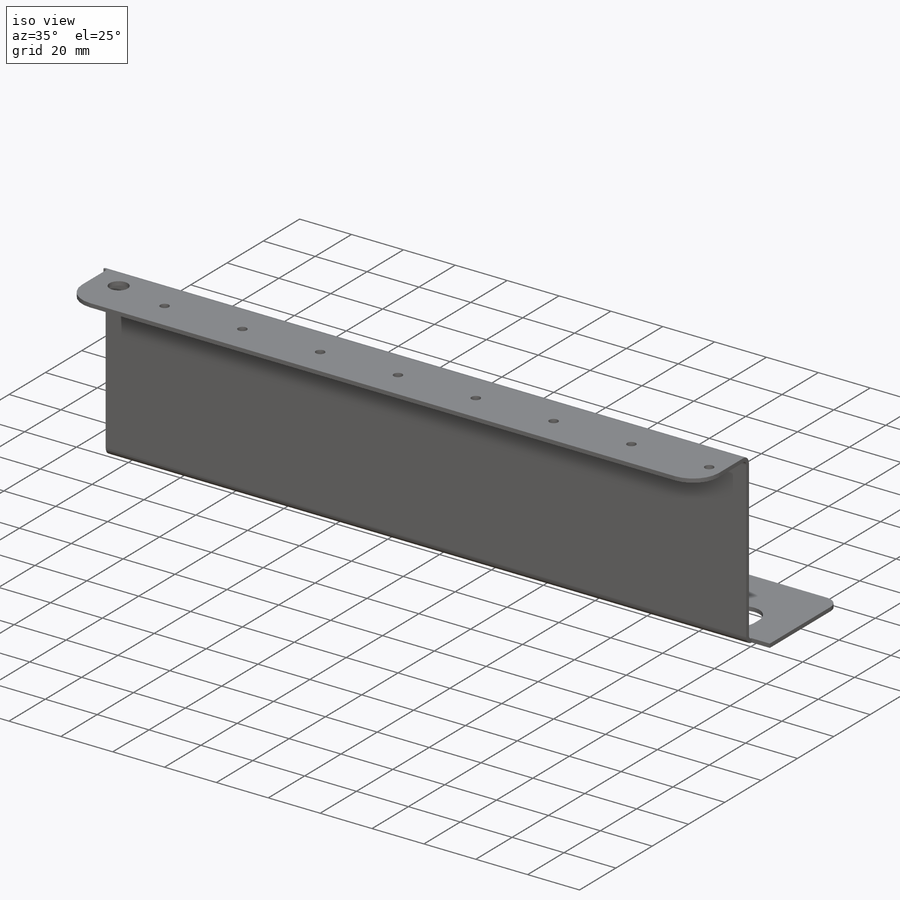
[diagram: iso view]
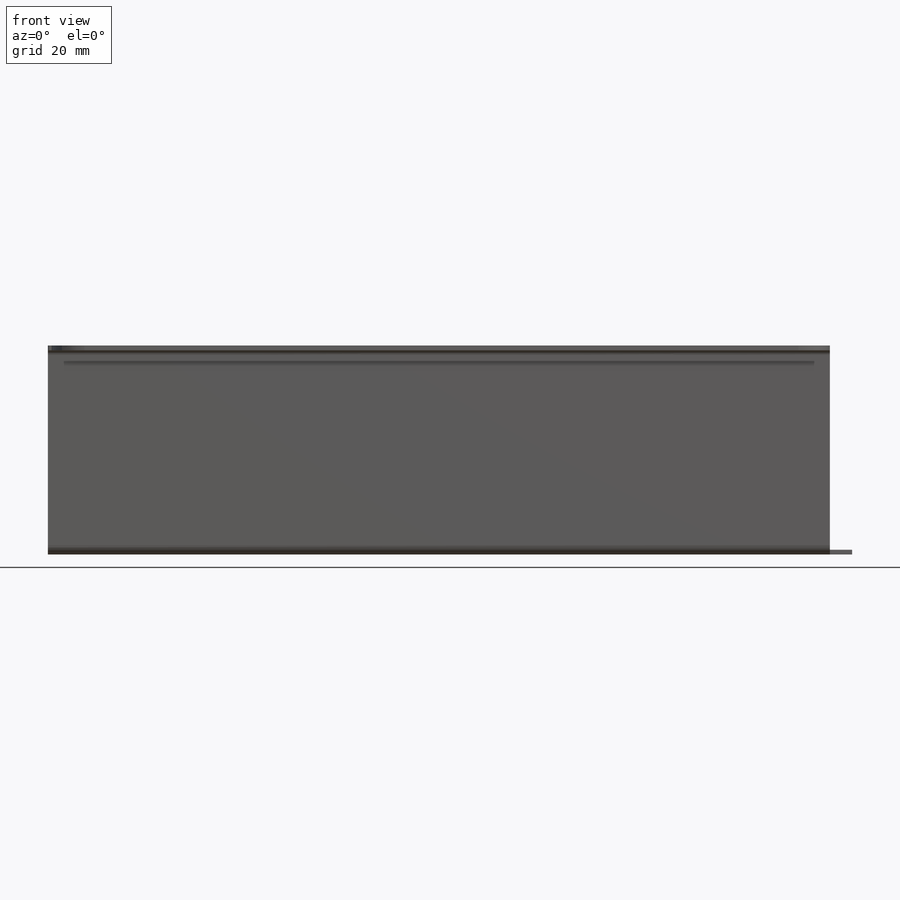
[diagram: front view]
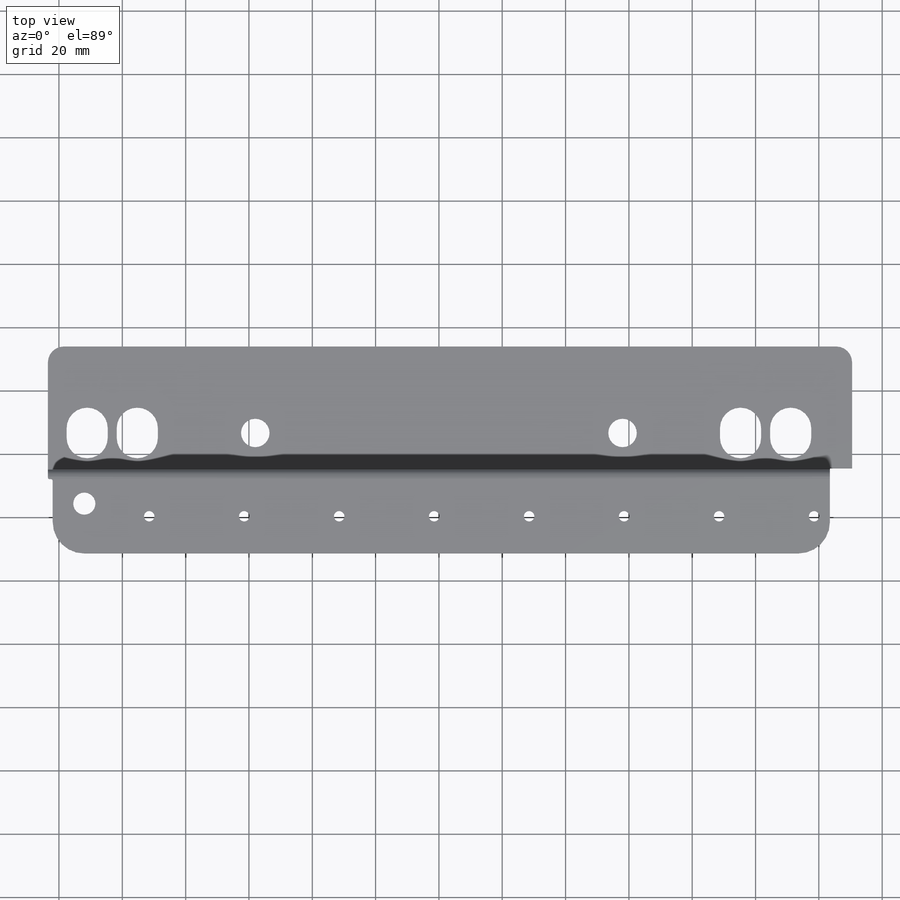
[diagram: top view]
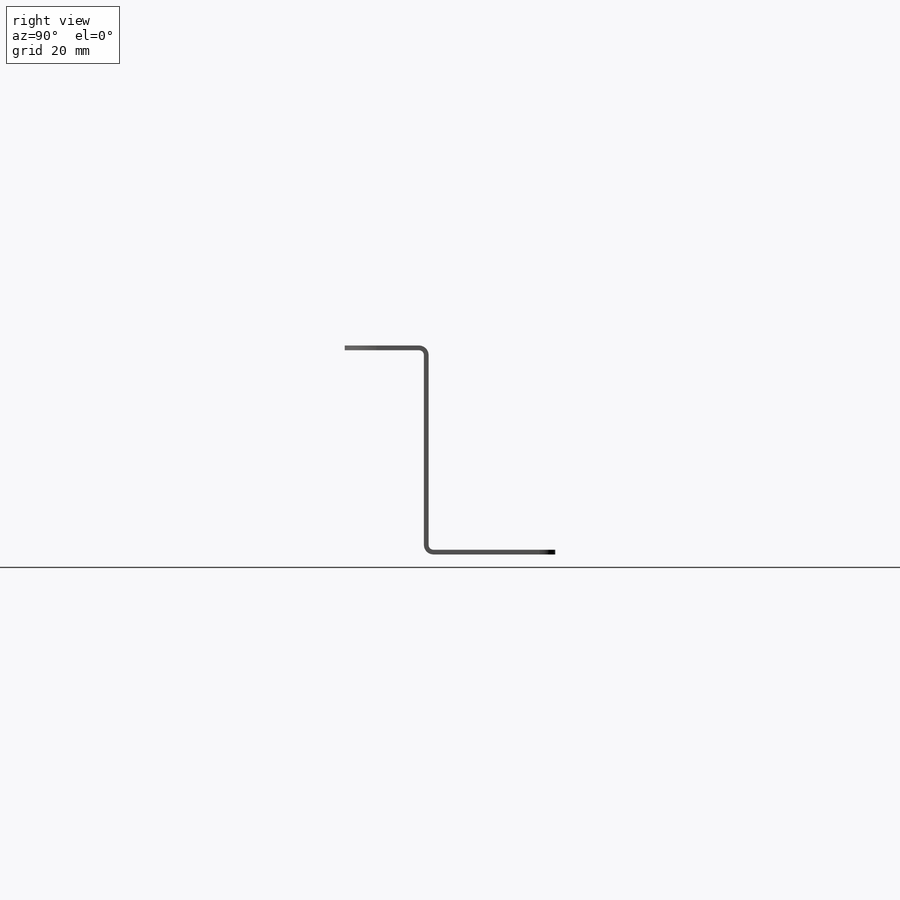
[diagram: right view]
SOLIDWORKS PART (.sldprt)
format: sldprt  version: not decoded by parser v0  size: 1,857,536 bytes
history: native  units: mm
features: sketch x59, sheet_metal_op x23, fillet x6, cut_extrude x4, hole x4, plane x3, extrude x2, thread x2, pattern_linear x2, mirror x2, material x1 + 19 further entries (+10 scaffold rows collapsed; 19 parser-record rows omitted)
feature tree (156):
  scaffold x10  (default folders/planes/origin — collapsed)
  material  "1.4301 (X5Crni18-10)"
  plane  "Ebene vorne"
  plane  "Ebene oben"
  plane  "Ebene rechts"
  sketch  "Skizze1"  dims[c1.D1=247.0mm c1.D2=25.0mm c2.D1=1.5mm c2.D2=0.5 c2.D3=0.0mm c2.D6=500.0mm]
  sheet_metal_op  "Basis-Blech1"
  sketch  "Skizze8"  dims[c1.D1=1.5mm c1.D4=90.0deg c1.D5=1.0 c1.D8=0.75mm c1.D9=0.75mm c2.D1=1.5mm c2.D2=500.0mm c2.D3=0.0mm c2.D6=10.0mm c2.D7=63.0mm c2.Kante-Lasche2=0.0]
  sketch  "Skizze11"
  sheet_metal_op  "Kantenbiegung2"
  sketch  "Skizze13"
  extrude  "Aufsatz-Linear austragen2"  Depth=7mm Kante-Lasche3=0
  sketch  "Skizze16"
  sheet_metal_op  "Kantenbiegung3"  Kante-Lasche4=0
  sketch  "Skizze19"
  sheet_metal_op  "Kantenbiegung4"
  sketch  "Skizze21"
  extrude  "Aufsatz-Linear austragen4"  Depth=7mm
  sketch  "Skizze22"
  cut_extrude  "Schnitt-Linear austragen1"  Depth=1.5mm
  fillet  "Verrundung6"  Radius=10mm
  fillet  "Verrundung7"  Radius=0.5mm
  fillet  "Verrundung8"  Radius=5mm
  sketch  "Skizze23"
  cut_extrude  "Schnitt-Linear austragen2"  Depth=1.5mm
  fillet  "Verrundung9"  Radius=0.5mm
  fillet  "Verrundung10"  Radius=10mm
  fillet  "Verrundung11"  Radius=5mm
  hole  "M4 Gewindebohrung1"  Diameter=3.3mm Depth=11.5mm
  sketch  "Skizze25"  dims[D1=32.0mm D2=13.25mm]
  sketch  "Skizze24"  dims[hole-wizard template sketch: 46 standard entries collapsed; hole parameters kept: c15.Bohrerdurchmesser=3.3mm c15.Bohrungstiefe=11.5mm c15.D3=~14.816244mm c15.Spitzenwinkel=118.0deg]
  thread  "Bohrungsgewinde1"  Diameter=1.5mm  [1 undecoded]
  pattern_linear  "Lineares Muster1"  Count1=8 Count2=1 Spacing1=30mm Spacing2=10mm
  hole  "M4 Gewindebohrung2"  Diameter=3.3mm Depth=11.5mm
  sketch  "Skizze29"  dims[D1=13.25mm D2=32.0mm]
  sketch  "Skizze28"  dims[hole-wizard template sketch: 46 standard entries collapsed; hole parameters kept: c15.Bohrerdurchmesser=3.3mm c15.Bohrungstiefe=11.5mm c15.D3=~14.816244mm c15.Spitzenwinkel=118.0deg]
  thread  "Bohrungsgewinde2"  Diameter=1.5mm  [1 undecoded]
  pattern_linear  "Lineares Muster2"  Count1=8 Count2=1 Spacing1=30mm Spacing2=10mm
  sketch  "Skizze30"  dims[c1.D3=6.5mm c1.D4=6.5mm c1.D8=9.0mm c1.D1=3.0mm c1.D2=3.0mm c2.D4=~11.141936mm c2.D5=95.27mm c2.D6=111.1mm c2.D7=27.3mm c2.D8=14.2mm c2.D9=58.0mm]
  cut_extrude  "Schnitt-Linear austragen3"  [1 undecoded]
  mirror  "Spiegeln1"
  sketch  "Skizze31"  dims[c1.D3=6.5mm c1.D4=6.5mm c1.D9=9.0mm c1.D1=95.27mm c1.D2=111.1mm c2.D3=~114.547463mm c2.D5=3.0mm c2.D6=3.0mm c2.D7=27.3mm c2.D8=58.0mm]
  cut_extrude  "Schnitt-Linear austragen4"  [1 undecoded]
  mirror  "Spiegeln2"
  hole  "Ø7.0 (7) Durchmesser Bohrung1"  Diameter=7mm Depth=1.5mm
  sketch  "Skizze33"  dims[D1=10.0mm D2=9.25mm]
  sketch  "Skizze32"  dims[hole-wizard template sketch: 59 standard entries collapsed; hole parameters kept: c18.Bohrerdurchmesser=7.0mm c18.Bohrungstiefe=1.5mm]
  hole  "Ø7.0 (7) Durchmesser Bohrung2"  Diameter=7mm Depth=1.5mm
  sketch  "Skizze35"  dims[D1=10.0mm D2=9.25mm]
  sketch  "Skizze34"  dims[hole-wizard template sketch: 59 standard entries collapsed; hole parameters kept: c18.Bohrerdurchmesser=7.0mm c18.Bohrungstiefe=1.5mm]
  sketch  "Biegung-Linien1"
  sketch  "Rahmen1"
  sheet_metal_op  "Blech1"
  "Abwicklung1"
  sketch  "Biegung-Linien2"
  sketch  "Rahmen2"
  parser-record x19  (decoder bookkeeping rows leaked as tree rows — omitted from the tree; the rows remain in map.json)
  sheet_metal_op  "Blech2"
  "Abwicklung1"
  sketch  "Biegung-Linien2"
  sketch  "Rahmen2"
  sheet_metal_op  "Blech3"
  "Abwicklung1"
  sketch  "Biegung-Linien2"
  sketch  "Rahmen2"
  sheet_metal_op  "Blech5"
  "Abwicklung1"
  sketch  "Biegung-Linien2"
  sketch  "Rahmen2"
  sheet_metal_op  "Blech6"
  "Abwicklung1"
  sketch  "Biegung-Linien2"
  sketch  "Rahmen2"
  sheet_metal_op  "Blech7"
  "Abwicklung1"
  sketch  "Biegung-Linien2"
  sketch  "Rahmen2"
  sheet_metal_op  "Blech9"
  "Abwicklung1"
  sketch  "Biegung-Linien2"
  sketch  "Rahmen2"
  sheet_metal_op  "Blech10"
  "Abwicklung1"
  sketch  "Biegung-Linien2"
  sketch  "Rahmen2"
  sheet_metal_op  "Blech11"
  "Abwicklung1"
  sketch  "Biegung-Linien2"
  sketch  "Rahmen2"
  sheet_metal_op  "Blech12"
  "Abwicklung1"
  sketch  "Biegung-Linien2"
  sketch  "Rahmen2"
  sheet_metal_op  "Blech13"
  "Abwicklung1"
  sketch  "Biegung-Linien2"
  sketch  "Rahmen2"
  sheet_metal_op  "Blech14"
  "Abwicklung1"
  sketch  "Biegung-Linien2"
  sketch  "Rahmen2"
  sheet_metal_op  "Blech15"
  "Abwicklung1"
  sketch  "Biegung-Linien2"
  sketch  "Rahmen2"
  sheet_metal_op  "Blech16"
  "Abwicklung1"
  sketch  "Biegung-Linien2"
  sketch  "Rahmen2"
  sheet_metal_op  "Blech17"
  "Abwicklung1"
  sketch  "Biegung-Linien2"
  sketch  "Rahmen2"
  sheet_metal_op  "Blech18"
  "Abwicklung1"
  sketch  "Biegung-Linien2"
  sketch  "Rahmen2"
  sheet_metal_op  "Blech19"
  "Abwicklung1"
  sketch  "Biegung-Linien2"
  sketch  "Rahmen2"
  sheet_metal_op  "Blech20"
  "Abwicklung1"
  sketch  "Biegung-Linien2"
  sketch  "Rahmen2"
  sheet_metal_op  "Blech21"
  "Abwicklung1"
  sketch  "Biegung-Linien2"
  sketch  "Rahmen2"
decode coverage: 31 of 104 modeling features carry decoded parameters; 19 rows unclassified (native names shown)
note: ~ marks probable driven/reference dimensions
note: 4 parameter values undecoded
summary: Diameter pulled from absorbed wizard sketch
note: suppression state not decoded; provenance and decode notes live in map.json
